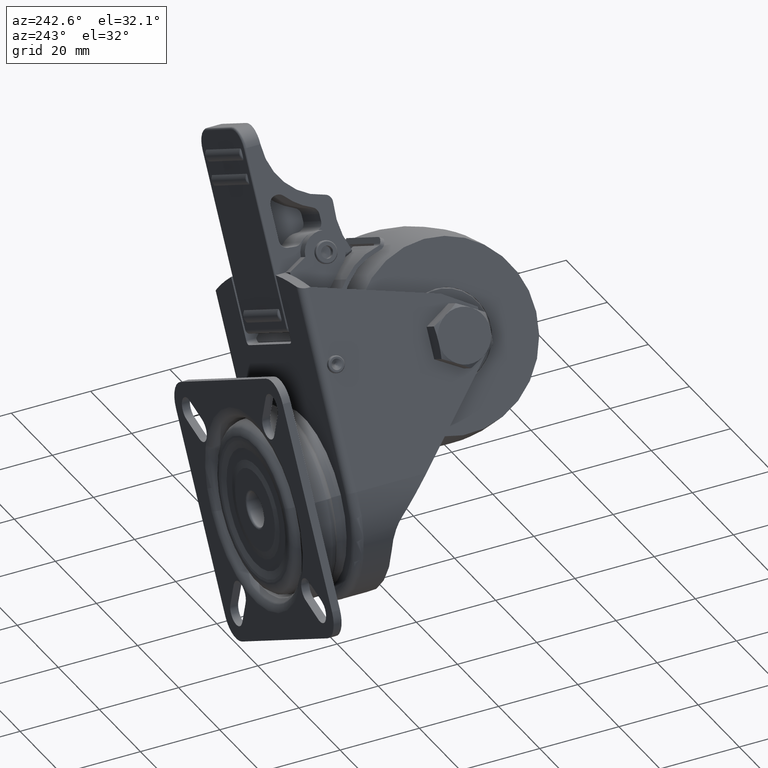
[diagram: clean part render]
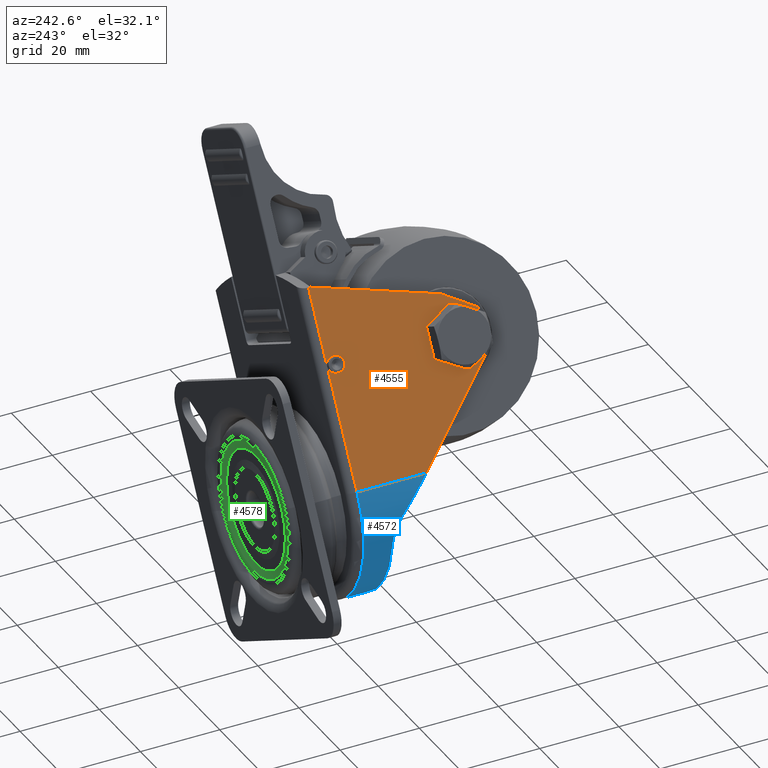
[diagram: same view with three faces highlighted in distinct colors, each labeled with its STEP entity id]
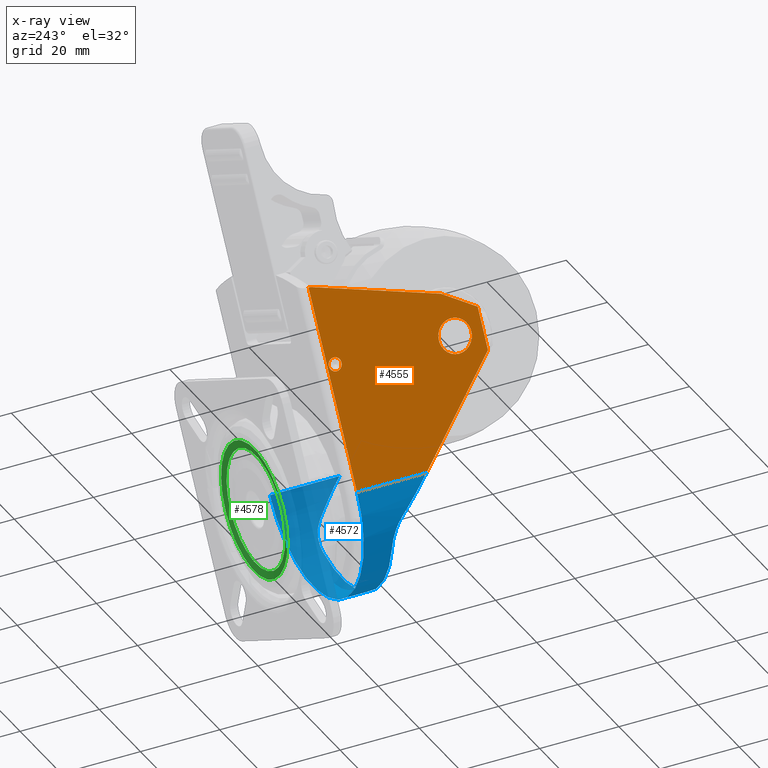
[diagram: x-ray of the same camera — body ghosted, the three highlighted faces saturated]
A machine part, auxiliary view with three faces highlighted in distinct colors.
The next image is the same camera in x-ray (body ghosted, the three faces saturated) — at least one of them is partly hidden behind the body in this view.
Their STEP definitions:

[orange] entity #4555 — the highlighted planar face has unit normal (-0.866, 0, 0.5).
#174=FACE_BOUND('',#758,.T.);
#175=FACE_BOUND('',#759,.T.);
#298=PLANE('',#4887);
#463=FACE_OUTER_BOUND('',#757,.T.);
#757=EDGE_LOOP('',(#3268,#3269,#3270,#3271,#3272,#3273,#3274));
#758=EDGE_LOOP('',(#3275));
#759=EDGE_LOOP('',(#3276));
#1133=CIRCLE('',#4853,1.6);
#1149=CIRCLE('',#4888,4.1);
#1379=LINE('',#6838,#1653);
#1383=LINE('',#6857,#1657);
#1430=LINE('',#6997,#1704);
#1431=LINE('',#6999,#1705);
#1432=LINE('',#7001,#1706);
#1433=LINE('',#7003,#1707);
#1434=LINE('',#7004,#1708);
#1653=VECTOR('',#5412,47.2424242424242);
#1657=VECTOR('',#5430,0.500000000000006);
#1704=VECTOR('',#5569,17.5260941464259);
#1705=VECTOR('',#5570,31.4663094850376);
#1706=VECTOR('',#5571,10.);
#1707=VECTOR('',#5572,9.43398113205661);
#1708=VECTOR('',#5573,31.8696157158657);
#2012=VERTEX_POINT('',#6819);
#2014=VERTEX_POINT('',#6825);
#2023=VERTEX_POINT('',#6856);
#2033=VERTEX_POINT('',#6886);
#2070=VERTEX_POINT('',#6996);
#2071=VERTEX_POINT('',#6998);
#2072=VERTEX_POINT('',#7000);
#2073=VERTEX_POINT('',#7002);
#2074=VERTEX_POINT('',#7005);
#2475=EDGE_CURVE('',#2012,#2014,#1379,.T.);
#2484=EDGE_CURVE('',#2023,#2014,#1383,.T.);
#2499=EDGE_CURVE('',#2033,#2033,#1133,.T.);
#2553=EDGE_CURVE('',#2012,#2070,#1430,.T.);
#2554=EDGE_CURVE('',#2070,#2071,#1431,.T.);
#2555=EDGE_CURVE('',#2072,#2071,#1432,.T.);
#2556=EDGE_CURVE('',#2072,#2073,#1433,.T.);
#2557=EDGE_CURVE('',#2073,#2023,#1434,.T.);
#2558=EDGE_CURVE('',#2074,#2074,#1149,.T.);
#3268=ORIENTED_EDGE('',*,*,#2475,.F.);
#3269=ORIENTED_EDGE('',*,*,#2553,.T.);
#3270=ORIENTED_EDGE('',*,*,#2554,.T.);
#3271=ORIENTED_EDGE('',*,*,#2555,.F.);
#3272=ORIENTED_EDGE('',*,*,#2556,.T.);
#3273=ORIENTED_EDGE('',*,*,#2557,.T.);
#3274=ORIENTED_EDGE('',*,*,#2484,.T.);
#3275=ORIENTED_EDGE('',*,*,#2499,.T.);
#3276=ORIENTED_EDGE('',*,*,#2558,.T.);
#4555=ADVANCED_FACE('',(#463,#174,#175),#298,.T.);
#4853=AXIS2_PLACEMENT_3D('',#6887,#5461,#5462);
#4887=AXIS2_PLACEMENT_3D('',#6995,#5567,#5568);
#4888=AXIS2_PLACEMENT_3D('',#7006,#5574,#5575);
#5412=DIRECTION('',(0.,1.,0.));
#5430=DIRECTION('',(0.,0.,-1.));
#5461=DIRECTION('center_axis',(1.,0.,0.));
#5462=DIRECTION('ref_axis',(0.,0.,1.));
#5567=DIRECTION('center_axis',(-1.,0.,0.));
#5568=DIRECTION('ref_axis',(0.,-1.,0.));
#5569=DIRECTION('',(0.,0.,1.));
#5570=DIRECTION('',(0.,0.730940500376654,0.682441195202288));
#5571=DIRECTION('',(0.,-1.,0.));
#5572=DIRECTION('',(0.,0.529998940003179,-0.847998304005088));
#5573=DIRECTION('',(0.,0.290007395282871,-0.957024404433474));
#5574=DIRECTION('center_axis',(1.,0.,0.));
#5575=DIRECTION('ref_axis',(0.,-1.,0.));
#6819=CARTESIAN_POINT('',(-24.5,-2.77555756156289E-15,2.));
#6825=CARTESIAN_POINT('',(-24.5,47.2424242424242,2.));
#6838=CARTESIAN_POINT('',(-24.5,33.2627570186346,2.));
#6856=CARTESIAN_POINT('',(-24.5,47.2424242424242,2.50000000000001));
#6857=CARTESIAN_POINT('',(-24.5,47.2424242424242,2.5));
#6886=CARTESIAN_POINT('',(-24.5,29.,2.4));
#6887=CARTESIAN_POINT('Origin',(-24.5,29.,4.));
#6995=CARTESIAN_POINT('Origin',(-24.5,48.,0.));
#6996=CARTESIAN_POINT('',(-24.5,-2.77555756156289E-15,19.5260941464259));
#6997=CARTESIAN_POINT('',(-24.5,-2.77555756156289E-15,0.));
#6998=CARTESIAN_POINT('',(-24.5,23.,41.));
#6999=CARTESIAN_POINT('',(-24.5,3.86474103632191,23.1344021969659));
#7000=CARTESIAN_POINT('',(-24.5,33.,41.));
#7001=CARTESIAN_POINT('',(-24.5,0.,41.));
#7002=CARTESIAN_POINT('',(-24.5,38.,33.));
#7003=CARTESIAN_POINT('',(-24.5,44.3202247191011,22.8876404494382));
#7004=CARTESIAN_POINT('',(-24.5,43.,16.5));
#7005=CARTESIAN_POINT('',(-24.5,32.1,34.));
#7006=CARTESIAN_POINT('Origin',(-24.5,28.,34.));

[blue] entity #4572 — the highlighted cylindrical surface (partial cylindrical patch) has radius 24.5 mm, axis along (0, -1, 0).
#153=ELLIPSE('',#4901,33.518460103627,24.5);
#155=ELLIPSE('',#4906,33.518460103627,24.5);
#480=FACE_OUTER_BOUND('',#780,.T.);
#780=EDGE_LOOP('',(#3348,#3349,#3350,#3351,#3352,#3353,#3354,#3355));
#1121=CIRCLE('',#4833,24.5);
#1152=CIRCLE('',#4896,24.5);
#1429=LINE('',#6992,#1703);
#1430=LINE('',#6997,#1704);
#1703=VECTOR('',#5564,17.5260941464259);
#1704=VECTOR('',#5569,17.5260941464259);
#1927=B_SPLINE_CURVE_WITH_KNOTS('',3,(#7037,#7038,#7039,#7040,#7041,#7042,
#7043,#7044),.UNSPECIFIED.,.F.,.F.,(4,2,2,4),(13.1906327757227,13.4393470112343,
13.8097021044566,14.0096528362998),.UNSPECIFIED.);
#1929=B_SPLINE_CURVE_WITH_KNOTS('',3,(#7060,#7061,#7062,#7063,#7064,#7065,
#7066,#7067),.UNSPECIFIED.,.F.,.F.,(4,2,2,4),(2.5199723210102,2.71992305285347,
3.0902781460758,3.33899238158739),.UNSPECIFIED.);
#2010=VERTEX_POINT('',#6813);
#2012=VERTEX_POINT('',#6819);
#2068=VERTEX_POINT('',#6990);
#2070=VERTEX_POINT('',#6996);
#2078=VERTEX_POINT('',#7019);
#2079=VERTEX_POINT('',#7021);
#2081=VERTEX_POINT('',#7036);
#2083=VERTEX_POINT('',#7058);
#2472=EDGE_CURVE('',#2010,#2012,#1121,.T.);
#2551=EDGE_CURVE('',#2010,#2068,#1429,.T.);
#2553=EDGE_CURVE('',#2012,#2070,#1430,.T.);
#2564=EDGE_CURVE('',#2079,#2078,#1152,.T.);
#2567=EDGE_CURVE('',#2081,#2079,#1927,.T.);
#2571=EDGE_CURVE('',#2078,#2083,#1929,.T.);
#2573=EDGE_CURVE('',#2068,#2081,#153,.T.);
#2582=EDGE_CURVE('',#2083,#2070,#155,.T.);
#3348=ORIENTED_EDGE('',*,*,#2472,.F.);
#3349=ORIENTED_EDGE('',*,*,#2551,.T.);
#3350=ORIENTED_EDGE('',*,*,#2573,.T.);
#3351=ORIENTED_EDGE('',*,*,#2567,.T.);
#3352=ORIENTED_EDGE('',*,*,#2564,.T.);
#3353=ORIENTED_EDGE('',*,*,#2571,.T.);
#3354=ORIENTED_EDGE('',*,*,#2582,.T.);
#3355=ORIENTED_EDGE('',*,*,#2553,.F.);
#4439=CYLINDRICAL_SURFACE('',#4912,24.5);
#4572=ADVANCED_FACE('',(#480),#4439,.T.);
#4833=AXIS2_PLACEMENT_3D('',#6823,#5407,#5408);
#4896=AXIS2_PLACEMENT_3D('',#7022,#5593,#5594);
#4901=AXIS2_PLACEMENT_3D('',#7070,#5606,#5607);
#4906=AXIS2_PLACEMENT_3D('',#7086,#5623,#5624);
#4912=AXIS2_PLACEMENT_3D('',#7094,#5637,#5638);
#5407=DIRECTION('center_axis',(0.,0.,-1.));
#5408=DIRECTION('ref_axis',(1.74520403694629E-16,-1.,0.));
#5564=DIRECTION('',(0.,0.,1.));
#5569=DIRECTION('',(0.,0.,1.));
#5593=DIRECTION('center_axis',(0.,-7.84085190911173E-17,-1.));
#5594=DIRECTION('ref_axis',(1.,1.13288063737261E-16,0.));
#5606=DIRECTION('center_axis',(0.,0.682441195202288,-0.730940500376654));
#5607=DIRECTION('ref_axis',(-8.28068339948157E-17,0.730940500376654,0.682441195202288));
#5623=DIRECTION('center_axis',(0.,0.682441195202288,-0.730940500376654));
#5624=DIRECTION('ref_axis',(-8.28068339948157E-17,0.730940500376654,0.682441195202288));
#5637=DIRECTION('center_axis',(0.,0.,1.));
#5638=DIRECTION('ref_axis',(1.,1.13288063737261E-16,0.));
#6813=CARTESIAN_POINT('',(24.5,6.10622663543836E-15,2.));
#6819=CARTESIAN_POINT('',(-24.5,-2.77555756156289E-15,2.));
#6823=CARTESIAN_POINT('Origin',(0.,0.,2.));
#6990=CARTESIAN_POINT('',(24.5,6.10622663543836E-15,19.5260941464259));
#6992=CARTESIAN_POINT('',(24.5,6.10622663543836E-15,0.));
#6996=CARTESIAN_POINT('',(-24.5,-2.77555756156289E-15,19.5260941464259));
#6997=CARTESIAN_POINT('',(-24.5,-2.77555756156289E-15,0.));
#7019=CARTESIAN_POINT('',(-19.3713706278105,-15.,9.20237706150258));
#7021=CARTESIAN_POINT('',(19.3713706278105,-15.,9.20237706150258));
#7022=CARTESIAN_POINT('Origin',(0.,0.,9.20237706150259));
#7036=CARTESIAN_POINT('',(23.0956653956922,-8.17558804797712,11.892972057736));
#7037=CARTESIAN_POINT('Ctrl Pts',(23.0956653956922,-8.17558804797712,11.8929720577361));
#7038=CARTESIAN_POINT('Ctrl Pts',(22.8807030610158,-8.78284689287337,11.3260060027773));
#7039=CARTESIAN_POINT('Ctrl Pts',(22.609549811953,-9.47002059323502,10.8304045037888));
#7040=CARTESIAN_POINT('Ctrl Pts',(21.7925668521684,-11.2567994796664,9.84954969378474));
#7041=CARTESIAN_POINT('Ctrl Pts',(21.1685620827783,-12.3951256078975,9.49209711796744));
#7042=CARTESIAN_POINT('Ctrl Pts',(20.1365777720701,-13.9715649900754,9.23966479011367));
#7043=CARTESIAN_POINT('Ctrl Pts',(19.7603872567079,-14.4976143134165,9.20237706150259));
#7044=CARTESIAN_POINT('Ctrl Pts',(19.3713706278105,-15.,9.20237706150259));
#7058=CARTESIAN_POINT('',(-23.0956653956922,-8.17558804797712,11.892972057736));
#7060=CARTESIAN_POINT('Ctrl Pts',(-19.3713706278105,-15.,9.20237706150259));
#7061=CARTESIAN_POINT('Ctrl Pts',(-19.7603872567079,-14.4976143134165,9.20237706150259));
#7062=CARTESIAN_POINT('Ctrl Pts',(-20.1365777720701,-13.9715649900754,9.23966479011367));
#7063=CARTESIAN_POINT('Ctrl Pts',(-21.1685620827783,-12.3951256078975,9.49209711796744));
#7064=CARTESIAN_POINT('Ctrl Pts',(-21.7925668521684,-11.2567994796664,9.84954969378473));
#7065=CARTESIAN_POINT('Ctrl Pts',(-22.609549811953,-9.47002059323502,10.8304045037888));
#7066=CARTESIAN_POINT('Ctrl Pts',(-22.8807030610158,-8.78284689287338,11.3260060027773));
#7067=CARTESIAN_POINT('Ctrl Pts',(-23.0956653956922,-8.17558804797712,11.8929720577361));
#7070=CARTESIAN_POINT('Origin',(0.,0.,19.5260941464259));
#7086=CARTESIAN_POINT('Origin',(0.,0.,19.5260941464259));
#7094=CARTESIAN_POINT('Origin',(0.,0.,0.));

[green] entity #4578 — the highlighted conical surface has half-angle 77.161 deg.
#90=CONICAL_SURFACE('',#4925,15.4030956209173,77.1607944666028);
#185=FACE_BOUND('',#792,.T.);
#486=FACE_OUTER_BOUND('',#791,.T.);
#791=EDGE_LOOP('',(#3366));
#792=EDGE_LOOP('',(#3367));
#1158=CIRCLE('',#4922,16.1708961477078);
#1160=CIRCLE('',#4926,14.3061912418347);
#2093=VERTEX_POINT('',#7109);
#2095=VERTEX_POINT('',#7115);
#2590=EDGE_CURVE('',#2093,#2093,#1158,.T.);
#2592=EDGE_CURVE('',#2095,#2095,#1160,.T.);
#3366=ORIENTED_EDGE('',*,*,#2592,.F.);
#3367=ORIENTED_EDGE('',*,*,#2590,.F.);
#4578=ADVANCED_FACE('',(#486,#185),#90,.F.);
#4922=AXIS2_PLACEMENT_3D('',#7110,#5657,#5658);
#4925=AXIS2_PLACEMENT_3D('',#7114,#5663,#5664);
#4926=AXIS2_PLACEMENT_3D('',#7116,#5665,#5666);
#5657=DIRECTION('center_axis',(0.,0.,1.));
#5658=DIRECTION('ref_axis',(1.,-6.12323399573677E-17,0.));
#5663=DIRECTION('center_axis',(0.,0.,-1.));
#5664=DIRECTION('ref_axis',(-1.,0.,0.));
#5665=DIRECTION('center_axis',(0.,0.,-1.));
#5666=DIRECTION('ref_axis',(1.,0.,0.));
#7109=CARTESIAN_POINT('',(-16.1708961477078,-1.98036362066347E-15,-12.9249925840009));
#7110=CARTESIAN_POINT('Origin',(0.,-9.90181810331733E-16,-12.9249925840009));
#7114=CARTESIAN_POINT('Origin',(0.,0.,-12.75));
#7115=CARTESIAN_POINT('',(-14.3061912418347,0.,-12.5));
#7116=CARTESIAN_POINT('Origin',(0.,0.,-12.5));